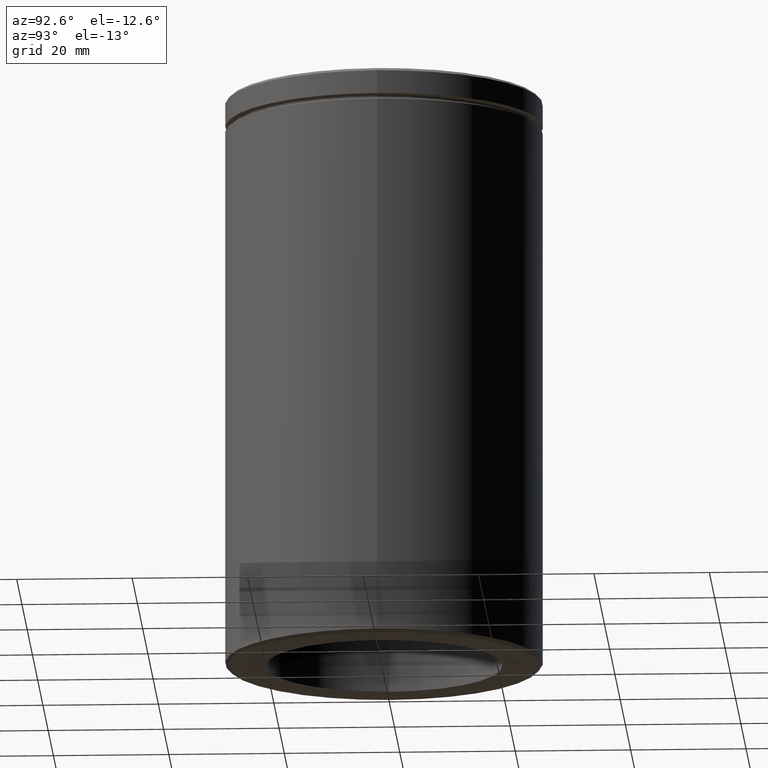
[diagram: clean part render]
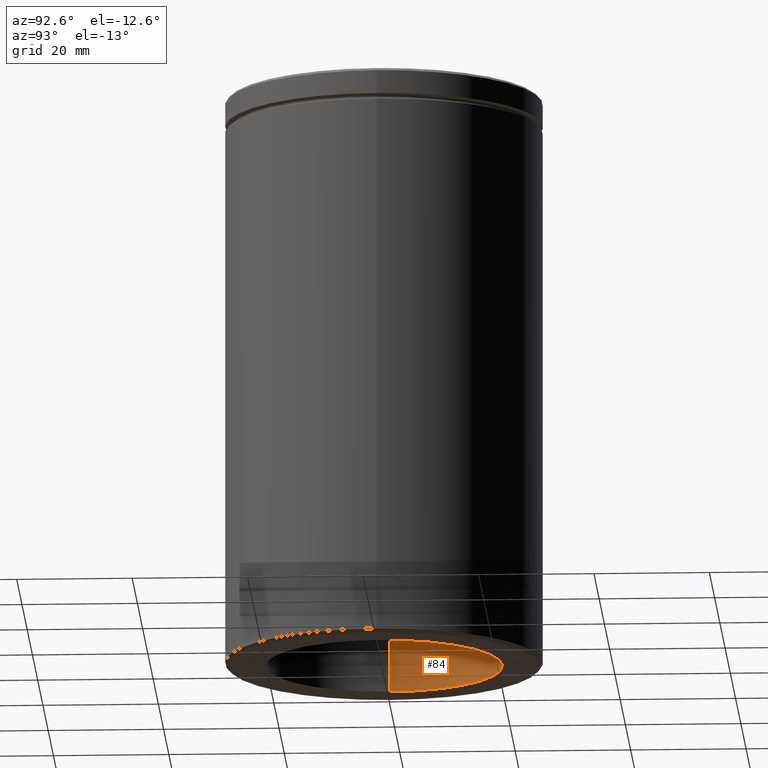
[diagram: same view with one face highlighted and labeled with its STEP entity id]
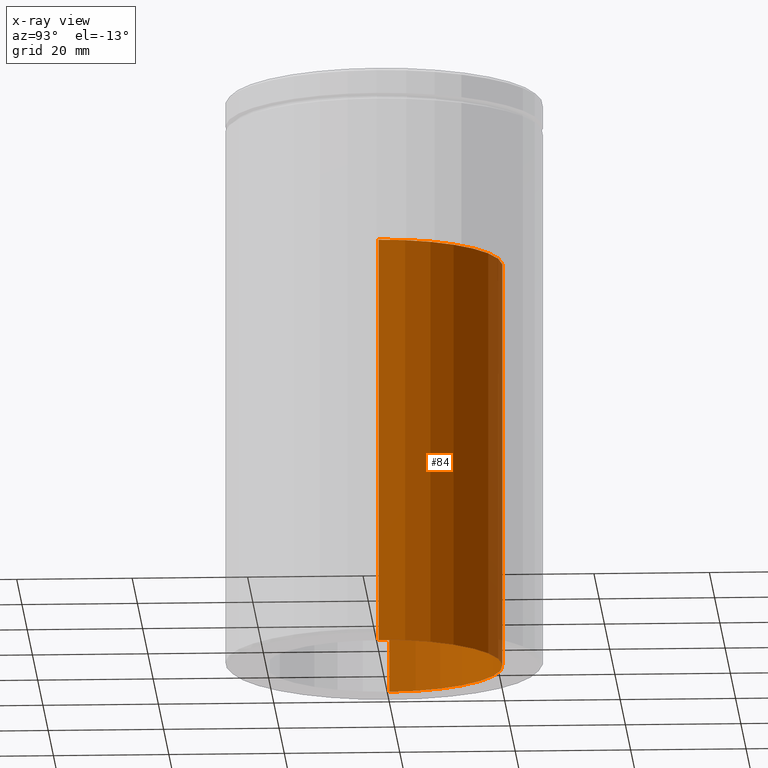
[diagram: x-ray of the same camera — body ghosted, the highlighted face saturated]
A machine part, auxiliary view. The second image highlights one B-rep face of the part: STEP entity #84.
The next image is the same camera in x-ray: the body ghosted, the highlighted face saturated — about 3% of this face is hidden behind the body in this view.
In plain terms, the highlighted cylindrical surface (partial cylindrical patch) has radius 20.5 mm, axis along (-0, -0, -1).
Its self-contained STEP definition (entity closure, byte-faithful):
#9 = EDGE_CURVE ( 'NONE', #347, #534, #212, .T. ) ;
#17 = CARTESIAN_POINT ( 'NONE',  ( -20.50000000000000000, 0.000000000000000000, -29.00000000000001066 ) ) ;
#22 = DIRECTION ( 'NONE',  ( -0.000000000000000000, -0.000000000000000000, -1.000000000000000000 ) ) ;
#43 = VERTEX_POINT ( 'NONE', #499 ) ;
#62 = EDGE_CURVE ( 'NONE', #347, #368, #509, .T. ) ;
#76 = EDGE_CURVE ( 'NONE', #534, #43, #462, .T. ) ;
#84 = ADVANCED_FACE ( 'NONE', ( #464 ), #465, .F. ) ;
#140 = ORIENTED_EDGE ( 'NONE', *, *, #9, .F. ) ;
#145 = EDGE_LOOP ( 'NONE', ( #450, #140, #386, #260 ) ) ;
#161 = CARTESIAN_POINT ( 'NONE',  ( 20.50000000000000000, 2.510525938252074481E-15, -29.00000000000001066 ) ) ;
#187 = DIRECTION ( 'NONE',  ( -1.000000000000000000, 0.000000000000000000, 0.000000000000000000 ) ) ;
#198 = CARTESIAN_POINT ( 'NONE',  ( 0.000000000000000000, 0.000000000000000000, -29.00000000000001066 ) ) ;
#203 = AXIS2_PLACEMENT_3D ( 'NONE', #356, #452, #187 ) ;
#212 = CIRCLE ( 'NONE', #276, 20.50000000000000000 ) ;
#221 = CARTESIAN_POINT ( 'NONE',  ( 20.50000000000000000, 2.510525938252074481E-15, -29.00000000000001066 ) ) ;
#234 = EDGE_CURVE ( 'NONE', #368, #43, #263, .T. ) ;
#241 = CARTESIAN_POINT ( 'NONE',  ( -20.50000000000000000, 0.000000000000000000, -29.00000000000001066 ) ) ;
#255 = AXIS2_PLACEMENT_3D ( 'NONE', #198, #22, #502 ) ;
#260 = ORIENTED_EDGE ( 'NONE', *, *, #234, .T. ) ;
#263 = CIRCLE ( 'NONE', #203, 20.50000000000000000 ) ;
#276 = AXIS2_PLACEMENT_3D ( 'NONE', #358, #308, #486 ) ;
#282 = DIRECTION ( 'NONE',  ( -0.000000000000000000, -0.000000000000000000, -1.000000000000000000 ) ) ;
#308 = DIRECTION ( 'NONE',  ( 0.000000000000000000, 0.000000000000000000, -1.000000000000000000 ) ) ;
#327 = VECTOR ( 'NONE', #545, 1000.000000000000000 ) ;
#347 = VERTEX_POINT ( 'NONE', #17 ) ;
#356 = CARTESIAN_POINT ( 'NONE',  ( 0.000000000000000000, 0.000000000000000000, -100.0000000000000000 ) ) ;
#358 = CARTESIAN_POINT ( 'NONE',  ( 0.000000000000000000, 0.000000000000000000, -29.00000000000001066 ) ) ;
#368 = VERTEX_POINT ( 'NONE', #470 ) ;
#386 = ORIENTED_EDGE ( 'NONE', *, *, #62, .T. ) ;
#409 = VECTOR ( 'NONE', #282, 1000.000000000000000 ) ;
#450 = ORIENTED_EDGE ( 'NONE', *, *, #76, .F. ) ;
#452 = DIRECTION ( 'NONE',  ( 0.000000000000000000, 0.000000000000000000, -1.000000000000000000 ) ) ;
#462 = LINE ( 'NONE', #161, #409 ) ;
#464 = FACE_OUTER_BOUND ( 'NONE', #145, .T. ) ;
#465 = CYLINDRICAL_SURFACE ( 'NONE', #255, 20.50000000000000000 ) ;
#470 = CARTESIAN_POINT ( 'NONE',  ( -20.50000000000000000, 0.000000000000000000, -100.0000000000000000 ) ) ;
#486 = DIRECTION ( 'NONE',  ( -1.000000000000000000, 0.000000000000000000, 0.000000000000000000 ) ) ;
#499 = CARTESIAN_POINT ( 'NONE',  ( 20.50000000000000000, 2.510525938252074481E-15, -100.0000000000000000 ) ) ;
#502 = DIRECTION ( 'NONE',  ( -1.000000000000000000, 0.000000000000000000, 0.000000000000000000 ) ) ;
#509 = LINE ( 'NONE', #241, #327 ) ;
#534 = VERTEX_POINT ( 'NONE', #221 ) ;
#545 = DIRECTION ( 'NONE',  ( -0.000000000000000000, -0.000000000000000000, -1.000000000000000000 ) ) ;